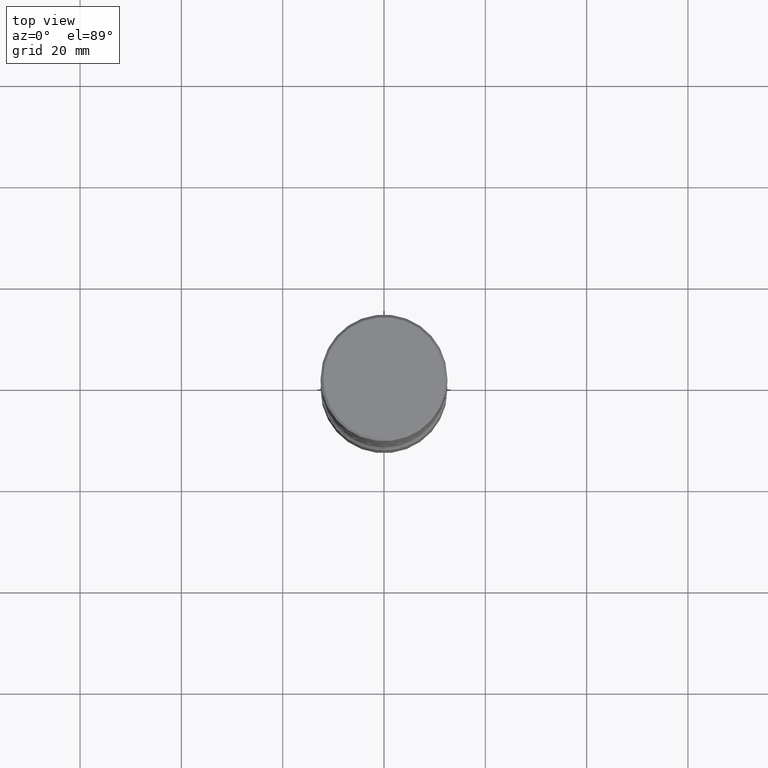
[diagram: clean part render]
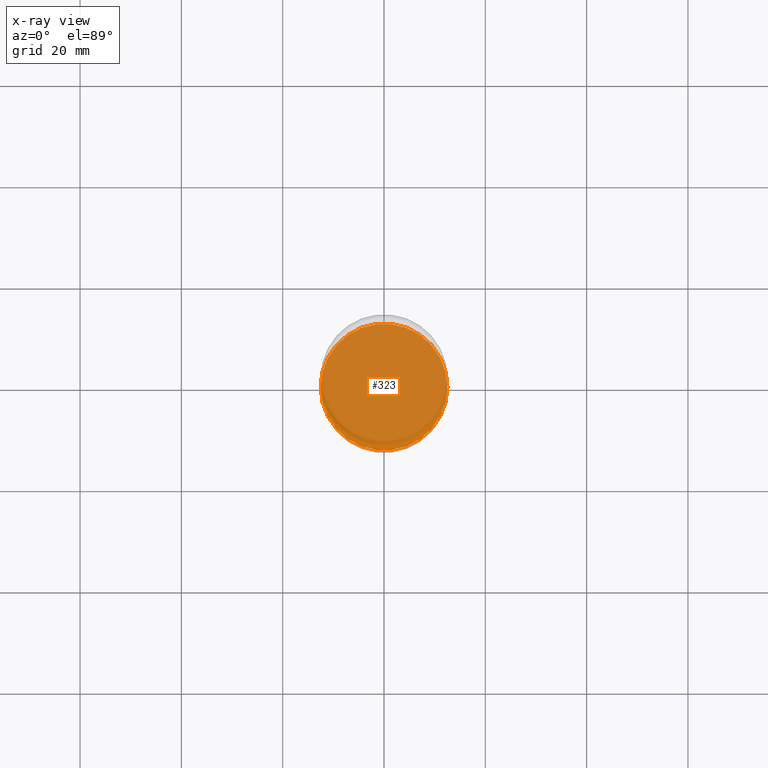
[diagram: x-ray — body ghosted, one internal face saturated and labeled with its STEP entity id]
A machine part, top view, then the same camera in x-ray: the body is ghosted and one INTERNAL B-rep face — a face not visible from any outside direction — is saturated and labeled: STEP entity #323.
In plain terms, the highlighted planar face has unit normal (0, -0, -1).
Its self-contained STEP definition (entity closure, byte-faithful):
#15 = AXIS2_PLACEMENT_3D ( 'NONE', #277, #397, #453 ) ;
#23 = AXIS2_PLACEMENT_3D ( 'NONE', #549, #325, #70 ) ;
#25 = CARTESIAN_POINT ( 'NONE',  ( 0.4921500000000001984, -1.786975064033309297E-14, -4.133799999999999919 ) ) ;
#29 = EDGE_LOOP ( 'NONE', ( #128, #465 ) ) ;
#70 = DIRECTION ( 'NONE',  ( 1.000000000000000000, -6.982962677686267499E-15, 0.000000000000000000 ) ) ;
#113 = FACE_OUTER_BOUND ( 'NONE', #29, .T. ) ;
#122 = AXIS2_PLACEMENT_3D ( 'NONE', #150, #271, #318 ) ;
#128 = ORIENTED_EDGE ( 'NONE', *, *, #341, .T. ) ;
#150 = CARTESIAN_POINT ( 'NONE',  ( 1.010907895100811684E-28, -1.443308555850979562E-14, -4.133799999999999919 ) ) ;
#189 = CARTESIAN_POINT ( 'NONE',  ( -0.4921500000000002539, -1.313560815387070066E-14, -4.133799999999999919 ) ) ;
#203 = VERTEX_POINT ( 'NONE', #189 ) ;
#269 = CIRCLE ( 'NONE', #122, 0.4921500000000001984 ) ;
#271 = DIRECTION ( 'NONE',  ( -2.445468806185136597E-29, 3.491481338843145583E-15, 1.000000000000000000 ) ) ;
#277 = CARTESIAN_POINT ( 'NONE',  ( 1.010907895100811684E-28, -1.443308555850979562E-14, -4.133799999999999919 ) ) ;
#298 = VERTEX_POINT ( 'NONE', #25 ) ;
#318 = DIRECTION ( 'NONE',  ( 1.000000000000000000, -6.982962677686267499E-15, 0.000000000000000000 ) ) ;
#323 = ADVANCED_FACE ( 'NONE', ( #113 ), #534, .F. ) ;
#325 = DIRECTION ( 'NONE',  ( -2.445468806185136597E-29, 3.491481338843145583E-15, 1.000000000000000000 ) ) ;
#341 = EDGE_CURVE ( 'NONE', #298, #203, #269, .T. ) ;
#397 = DIRECTION ( 'NONE',  ( 2.438088387897960049E-29, -3.491481338843145188E-15, -1.000000000000000000 ) ) ;
#453 = DIRECTION ( 'NONE',  ( -1.000000000000000000, 6.982962677686265922E-15, -4.876176775795935793E-29 ) ) ;
#465 = ORIENTED_EDGE ( 'NONE', *, *, #495, .T. ) ;
#488 = CIRCLE ( 'NONE', #23, 0.4921500000000001984 ) ;
#495 = EDGE_CURVE ( 'NONE', #203, #298, #488, .T. ) ;
#534 = PLANE ( 'NONE',  #15 ) ;
#549 = CARTESIAN_POINT ( 'NONE',  ( 1.010907895100811684E-28, -1.443308555850979562E-14, -4.133799999999999919 ) ) ;